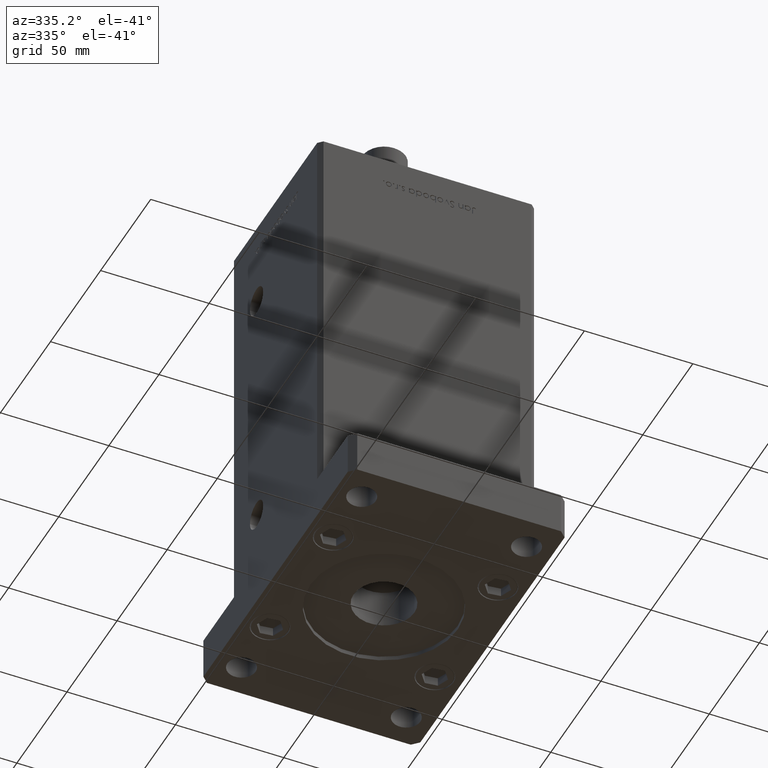
[diagram: clean part render]
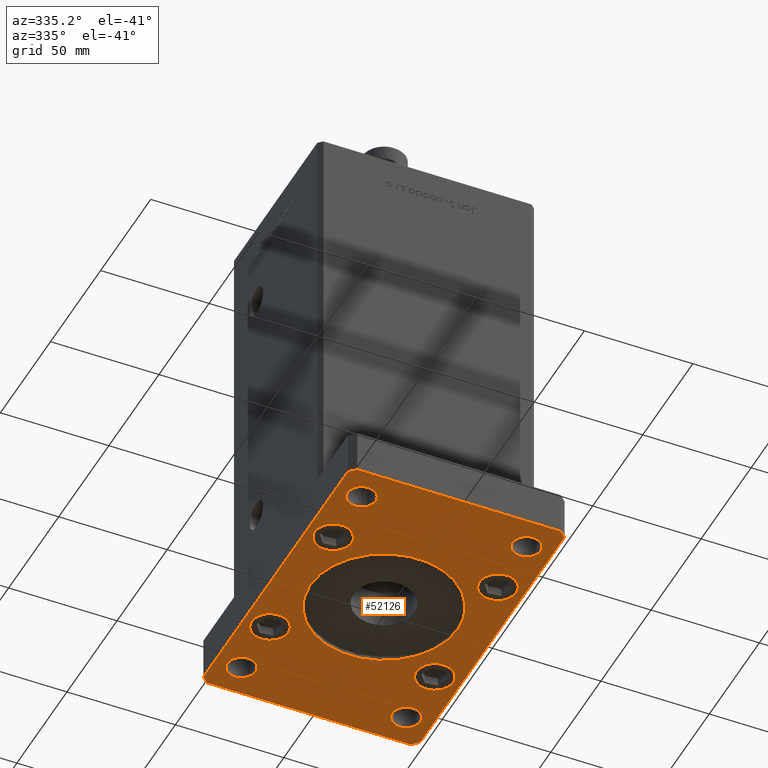
[diagram: same view with one face highlighted and labeled with its STEP entity id]
A machine part, auxiliary view. The second image highlights one B-rep face of the part: STEP entity #52126.
In plain terms, the highlighted planar face has unit normal (0, 0, 1).
Its self-contained STEP definition (entity closure, byte-faithful):
#197 = EDGE_LOOP ( 'NONE', ( #28468, #6349 ) ) ;
#212 = CARTESIAN_POINT ( 'NONE',  ( 50.00000000000000000, 72.00000000000001421, 0.000000000000000000 ) ) ;
#665 = VECTOR ( 'NONE', #53229, 1000.000000000000114 ) ;
#1785 = ORIENTED_EDGE ( 'NONE', *, *, #2836, .T. ) ;
#2441 = DIRECTION ( 'NONE',  ( 1.000000000000000000, 0.000000000000000000, 0.000000000000000000 ) ) ;
#2457 = CARTESIAN_POINT ( 'NONE',  ( 37.99999999999999289, 31.49999999999999289, 0.000000000000000000 ) ) ;
#2836 = EDGE_CURVE ( 'NONE', #18171, #7331, #42894, .T. ) ;
#2991 = EDGE_LOOP ( 'NONE', ( #16797, #13464 ) ) ;
#3123 = CARTESIAN_POINT ( 'NONE',  ( -37.99999999999997868, -60.00000000000000711, 0.000000000000000000 ) ) ;
#3392 = LINE ( 'NONE', #11594, #665 ) ;
#3873 = DIRECTION ( 'NONE',  ( 0.000000000000000000, 1.000000000000000000, 0.000000000000000000 ) ) ;
#4019 = VERTEX_POINT ( 'NONE', #23829 ) ;
#4035 = EDGE_CURVE ( 'NONE', #33178, #12800, #11246, .T. ) ;
#4108 = VERTEX_POINT ( 'NONE', #29292 ) ;
#4180 = ORIENTED_EDGE ( 'NONE', *, *, #4035, .F. ) ;
#4201 = DIRECTION ( 'NONE',  ( 1.000000000000000000, 0.000000000000000000, 0.000000000000000000 ) ) ;
#4315 = CARTESIAN_POINT ( 'NONE',  ( 50.00000000000000000, -71.99999999999988631, 0.000000000000000000 ) ) ;
#4889 = VECTOR ( 'NONE', #3873, 1000.000000000000000 ) ;
#5062 = DIRECTION ( 'NONE',  ( 0.000000000000000000, 0.000000000000000000, 1.000000000000000000 ) ) ;
#5187 = LINE ( 'NONE', #51744, #36402 ) ;
#5207 = ORIENTED_EDGE ( 'NONE', *, *, #12128, .T. ) ;
#5266 = DIRECTION ( 'NONE',  ( 0.000000000000000000, 0.000000000000000000, 1.000000000000000000 ) ) ;
#5337 = EDGE_CURVE ( 'NONE', #27609, #50921, #17599, .T. ) ;
#5537 = DIRECTION ( 'NONE',  ( 0.000000000000000000, 0.000000000000000000, 1.000000000000000000 ) ) ;
#5564 = EDGE_CURVE ( 'NONE', #32178, #21363, #53173, .T. ) ;
#5858 = AXIS2_PLACEMENT_3D ( 'NONE', #35581, #52556, #2441 ) ;
#6349 = ORIENTED_EDGE ( 'NONE', *, *, #47598, .F. ) ;
#6603 = CARTESIAN_POINT ( 'NONE',  ( 47.00000000000001421, -74.99999999999988631, 0.000000000000000000 ) ) ;
#7054 = AXIS2_PLACEMENT_3D ( 'NONE', #40006, #52882, #15077 ) ;
#7155 = ORIENTED_EDGE ( 'NONE', *, *, #23104, .F. ) ;
#7331 = VERTEX_POINT ( 'NONE', #38811 ) ;
#7526 = EDGE_CURVE ( 'NONE', #50304, #41120, #45672, .T. ) ;
#7620 = FACE_BOUND ( 'NONE', #197, .T. ) ;
#7838 = EDGE_CURVE ( 'NONE', #21363, #34116, #51510, .T. ) ;
#7860 = ORIENTED_EDGE ( 'NONE', *, *, #12104, .T. ) ;
#8419 = DIRECTION ( 'NONE',  ( 0.000000000000000000, 0.000000000000000000, 1.000000000000000000 ) ) ;
#9024 = VERTEX_POINT ( 'NONE', #42884 ) ;
#9240 = ORIENTED_EDGE ( 'NONE', *, *, #33992, .T. ) ;
#9595 = CARTESIAN_POINT ( 'NONE',  ( 44.50000000000000000, 59.99999999999998579, 0.000000000000000000 ) ) ;
#9722 = EDGE_LOOP ( 'NONE', ( #14594, #42485 ) ) ;
#10024 = DIRECTION ( 'NONE',  ( -1.000000000000000000, 0.000000000000000000, 0.000000000000000000 ) ) ;
#10362 = DIRECTION ( 'NONE',  ( -0.7071067811865425767, -0.7071067811865525687, 0.000000000000000000 ) ) ;
#11031 = EDGE_LOOP ( 'NONE', ( #5207, #28171 ) ) ;
#11246 = LINE ( 'NONE', #6603, #40302 ) ;
#11347 = VERTEX_POINT ( 'NONE', #22489 ) ;
#11537 = CARTESIAN_POINT ( 'NONE',  ( 50.00000000000000000, 72.00000000000001421, 0.000000000000000000 ) ) ;
#11594 = CARTESIAN_POINT ( 'NONE',  ( -49.99999999999998579, -72.00000000000001421, 0.000000000000000000 ) ) ;
#11996 = PLANE ( 'NONE',  #41144 ) ;
#12068 = CARTESIAN_POINT ( 'NONE',  ( 29.49999999999999645, -31.49999999999999289, 0.000000000000000000 ) ) ;
#12104 = EDGE_CURVE ( 'NONE', #46438, #34379, #36167, .T. ) ;
#12128 = EDGE_CURVE ( 'NONE', #9024, #27356, #43161, .T. ) ;
#12759 = DIRECTION ( 'NONE',  ( 0.000000000000000000, 0.000000000000000000, -1.000000000000000000 ) ) ;
#12800 = VERTEX_POINT ( 'NONE', #4315 ) ;
#12809 = DIRECTION ( 'NONE',  ( 1.000000000000000000, 0.000000000000000000, 0.000000000000000000 ) ) ;
#13053 = DIRECTION ( 'NONE',  ( 0.000000000000000000, 0.000000000000000000, 1.000000000000000000 ) ) ;
#13464 = ORIENTED_EDGE ( 'NONE', *, *, #27520, .T. ) ;
#13779 = CIRCLE ( 'NONE', #37397, 34.00000000000000000 ) ;
#13964 = DIRECTION ( 'NONE',  ( 0.000000000000000000, 0.000000000000000000, 1.000000000000000000 ) ) ;
#14188 = VECTOR ( 'NONE', #30670, 1000.000000000000000 ) ;
#14236 = DIRECTION ( 'NONE',  ( 1.000000000000000000, 0.000000000000000000, 0.000000000000000000 ) ) ;
#14594 = ORIENTED_EDGE ( 'NONE', *, *, #37574, .T. ) ;
#14742 = EDGE_CURVE ( 'NONE', #34379, #46438, #34488, .T. ) ;
#14844 = VERTEX_POINT ( 'NONE', #23112 ) ;
#15077 = DIRECTION ( 'NONE',  ( 1.000000000000000000, 0.000000000000000000, 0.000000000000000000 ) ) ;
#15486 = DIRECTION ( 'NONE',  ( 0.000000000000000000, 0.000000000000000000, 1.000000000000000000 ) ) ;
#15758 = CARTESIAN_POINT ( 'NONE',  ( -50.00000000000001421, 72.00000000000000000, 0.000000000000000000 ) ) ;
#15830 = FACE_BOUND ( 'NONE', #2991, .T. ) ;
#16357 = AXIS2_PLACEMENT_3D ( 'NONE', #42846, #41765, #38469 ) ;
#16631 = FACE_BOUND ( 'NONE', #21510, .T. ) ;
#16797 = ORIENTED_EDGE ( 'NONE', *, *, #5337, .T. ) ;
#17109 = ORIENTED_EDGE ( 'NONE', *, *, #21859, .T. ) ;
#17296 = AXIS2_PLACEMENT_3D ( 'NONE', #2457, #13964, #14236 ) ;
#17572 = CARTESIAN_POINT ( 'NONE',  ( -37.99999999999999289, 59.99999999999999289, 0.000000000000000000 ) ) ;
#17599 = CIRCLE ( 'NONE', #50856, 8.499999999999992895 ) ;
#18084 = CIRCLE ( 'NONE', #39086, 6.499999999999999112 ) ;
#18171 = VERTEX_POINT ( 'NONE', #41136 ) ;
#18331 = CARTESIAN_POINT ( 'NONE',  ( 47.00000000000002132, 75.00000000000002842, 0.000000000000000000 ) ) ;
#18448 = VECTOR ( 'NONE', #28236, 999.9999999999998863 ) ;
#18789 = CARTESIAN_POINT ( 'NONE',  ( 37.99999999999999289, 31.49999999999999289, 0.000000000000000000 ) ) ;
#18795 = CARTESIAN_POINT ( 'NONE',  ( -47.00000000000002842, 75.00000000000002842, 0.000000000000000000 ) ) ;
#18869 = CARTESIAN_POINT ( 'NONE',  ( 29.49999999999999645, 31.49999999999999289, 0.000000000000000000 ) ) ;
#19103 = EDGE_CURVE ( 'NONE', #27356, #9024, #44995, .T. ) ;
#19603 = DIRECTION ( 'NONE',  ( 0.000000000000000000, 0.000000000000000000, 1.000000000000000000 ) ) ;
#19721 = CIRCLE ( 'NONE', #39854, 8.499999999999992895 ) ;
#19844 = CIRCLE ( 'NONE', #16357, 6.499999999999999112 ) ;
#20120 = DIRECTION ( 'NONE',  ( 1.000000000000000000, 0.000000000000000000, 0.000000000000000000 ) ) ;
#21028 = DIRECTION ( 'NONE',  ( 0.000000000000000000, 0.000000000000000000, 1.000000000000000000 ) ) ;
#21363 = VERTEX_POINT ( 'NONE', #29752 ) ;
#21510 = EDGE_LOOP ( 'NONE', ( #31856, #30260 ) ) ;
#21535 = DIRECTION ( 'NONE',  ( 1.000000000000000000, 0.000000000000000000, 0.000000000000000000 ) ) ;
#21564 = CARTESIAN_POINT ( 'NONE',  ( -37.99999999999999289, 59.99999999999999289, 0.000000000000000000 ) ) ;
#21745 = DIRECTION ( 'NONE',  ( 1.000000000000000000, 0.000000000000000000, 0.000000000000000000 ) ) ;
#21859 = EDGE_CURVE ( 'NONE', #41120, #50304, #34600, .T. ) ;
#21954 = DIRECTION ( 'NONE',  ( 1.000000000000000000, 0.000000000000000000, 0.000000000000000000 ) ) ;
#22220 = DIRECTION ( 'NONE',  ( 1.000000000000000000, 0.000000000000000000, 0.000000000000000000 ) ) ;
#22489 = CARTESIAN_POINT ( 'NONE',  ( -31.49999999999997868, -60.00000000000000711, 0.000000000000000000 ) ) ;
#23010 = AXIS2_PLACEMENT_3D ( 'NONE', #34287, #5266, #21954 ) ;
#23104 = EDGE_CURVE ( 'NONE', #53372, #33178, #5187, .T. ) ;
#23112 = CARTESIAN_POINT ( 'NONE',  ( -49.99999999999998579, -72.00000000000001421, 0.000000000000000000 ) ) ;
#23273 = EDGE_CURVE ( 'NONE', #34116, #25913, #31713, .T. ) ;
#23829 = CARTESIAN_POINT ( 'NONE',  ( 34.00000000000000000, 4.163799117101000559E-15, 0.000000000000000000 ) ) ;
#24696 = ORIENTED_EDGE ( 'NONE', *, *, #14742, .T. ) ;
#24857 = FACE_BOUND ( 'NONE', #9722, .T. ) ;
#25093 = CARTESIAN_POINT ( 'NONE',  ( 0.000000000000000000, 0.000000000000000000, 0.000000000000000000 ) ) ;
#25126 = FACE_BOUND ( 'NONE', #39889, .T. ) ;
#25636 = EDGE_CURVE ( 'NONE', #11347, #30136, #18084, .T. ) ;
#25913 = VERTEX_POINT ( 'NONE', #15758 ) ;
#26099 = AXIS2_PLACEMENT_3D ( 'NONE', #53889, #13053, #21535 ) ;
#26149 = EDGE_CURVE ( 'NONE', #14844, #53372, #3392, .T. ) ;
#26183 = DIRECTION ( 'NONE',  ( 1.000000000000000000, 0.000000000000000000, 0.000000000000000000 ) ) ;
#27125 = CARTESIAN_POINT ( 'NONE',  ( -50.00000000000001421, 72.00000000000000000, 0.000000000000000000 ) ) ;
#27356 = VERTEX_POINT ( 'NONE', #44956 ) ;
#27520 = EDGE_CURVE ( 'NONE', #50921, #27609, #42685, .T. ) ;
#27609 = VERTEX_POINT ( 'NONE', #18869 ) ;
#27891 = AXIS2_PLACEMENT_3D ( 'NONE', #36322, #15486, #42583 ) ;
#28171 = ORIENTED_EDGE ( 'NONE', *, *, #19103, .T. ) ;
#28236 = DIRECTION ( 'NONE',  ( -0.7071067811865435759, 0.7071067811865515695, 0.000000000000000000 ) ) ;
#28424 = FACE_OUTER_BOUND ( 'NONE', #42066, .T. ) ;
#28468 = ORIENTED_EDGE ( 'NONE', *, *, #43608, .F. ) ;
#29292 = CARTESIAN_POINT ( 'NONE',  ( -29.50000000000000711, 31.50000000000000000, 0.000000000000000000 ) ) ;
#29451 = CIRCLE ( 'NONE', #5858, 8.499999999999992895 ) ;
#29525 = VECTOR ( 'NONE', #34821, 1000.000000000000000 ) ;
#29752 = CARTESIAN_POINT ( 'NONE',  ( 47.00000000000002132, 75.00000000000002842, 0.000000000000000000 ) ) ;
#30136 = VERTEX_POINT ( 'NONE', #41130 ) ;
#30260 = ORIENTED_EDGE ( 'NONE', *, *, #47135, .T. ) ;
#30670 = DIRECTION ( 'NONE',  ( -1.000000000000000000, 0.000000000000000000, 0.000000000000000000 ) ) ;
#30841 = DIRECTION ( 'NONE',  ( 0.000000000000000000, 0.000000000000000000, -1.000000000000000000 ) ) ;
#30870 = DIRECTION ( 'NONE',  ( 0.000000000000000000, 0.000000000000000000, 1.000000000000000000 ) ) ;
#30885 = ORIENTED_EDGE ( 'NONE', *, *, #44837, .F. ) ;
#30927 = AXIS2_PLACEMENT_3D ( 'NONE', #17572, #5537, #22220 ) ;
#30956 = CARTESIAN_POINT ( 'NONE',  ( -47.00000000000000000, -75.00000000000000000, 0.000000000000000000 ) ) ;
#31713 = LINE ( 'NONE', #35556, #41661 ) ;
#31856 = ORIENTED_EDGE ( 'NONE', *, *, #51669, .T. ) ;
#32178 = VERTEX_POINT ( 'NONE', #212 ) ;
#32183 = EDGE_LOOP ( 'NONE', ( #41955, #1785 ) ) ;
#32206 = ORIENTED_EDGE ( 'NONE', *, *, #7526, .T. ) ;
#32395 = CARTESIAN_POINT ( 'NONE',  ( 31.50000000000000000, 59.99999999999998579, 0.000000000000000000 ) ) ;
#32550 = DIRECTION ( 'NONE',  ( 1.000000000000000000, 0.000000000000000000, -0.000000000000000000 ) ) ;
#32845 = AXIS2_PLACEMENT_3D ( 'NONE', #42842, #5062, #21745 ) ;
#33039 = EDGE_LOOP ( 'NONE', ( #9240, #51300 ) ) ;
#33178 = VERTEX_POINT ( 'NONE', #48106 ) ;
#33782 = VERTEX_POINT ( 'NONE', #12068 ) ;
#33992 = EDGE_CURVE ( 'NONE', #33782, #41194, #19721, .T. ) ;
#34116 = VERTEX_POINT ( 'NONE', #18795 ) ;
#34122 = ORIENTED_EDGE ( 'NONE', *, *, #23273, .F. ) ;
#34134 = AXIS2_PLACEMENT_3D ( 'NONE', #51135, #47005, #26183 ) ;
#34287 = CARTESIAN_POINT ( 'NONE',  ( -38.00000000000000711, -31.50000000000000000, 0.000000000000000000 ) ) ;
#34379 = VERTEX_POINT ( 'NONE', #48530 ) ;
#34455 = EDGE_CURVE ( 'NONE', #12800, #32178, #49622, .T. ) ;
#34488 = CIRCLE ( 'NONE', #41478, 6.499999999999999112 ) ;
#34522 = AXIS2_PLACEMENT_3D ( 'NONE', #49173, #36030, #20120 ) ;
#34600 = CIRCLE ( 'NONE', #32845, 6.499999999999999112 ) ;
#34758 = DIRECTION ( 'NONE',  ( 1.000000000000000000, 1.181088324069315250E-15, 0.000000000000000000 ) ) ;
#34821 = DIRECTION ( 'NONE',  ( 1.927470528863118802E-16, -1.000000000000000000, 0.000000000000000000 ) ) ;
#35026 = CARTESIAN_POINT ( 'NONE',  ( 46.49999999999998579, 31.49999999999999289, 0.000000000000000000 ) ) ;
#35515 = DIRECTION ( 'NONE',  ( 1.000000000000000000, 0.000000000000000000, 0.000000000000000000 ) ) ;
#35556 = CARTESIAN_POINT ( 'NONE',  ( -47.00000000000002842, 75.00000000000002842, 0.000000000000000000 ) ) ;
#35581 = CARTESIAN_POINT ( 'NONE',  ( 37.99999999999999289, -31.49999999999999289, 0.000000000000000000 ) ) ;
#35901 = DIRECTION ( 'NONE',  ( 0.7071067811865459074, 0.7071067811865491270, 0.000000000000000000 ) ) ;
#36030 = DIRECTION ( 'NONE',  ( 0.000000000000000000, 0.000000000000000000, 1.000000000000000000 ) ) ;
#36167 = CIRCLE ( 'NONE', #30927, 6.499999999999999112 ) ;
#36322 = CARTESIAN_POINT ( 'NONE',  ( -38.00000000000000711, 31.50000000000000000, 0.000000000000000000 ) ) ;
#36402 = VECTOR ( 'NONE', #34758, 1000.000000000000000 ) ;
#36661 = CARTESIAN_POINT ( 'NONE',  ( 0.000000000000000000, 0.000000000000000000, 0.000000000000000000 ) ) ;
#36804 = DIRECTION ( 'NONE',  ( 0.000000000000000000, 0.000000000000000000, 1.000000000000000000 ) ) ;
#37397 = AXIS2_PLACEMENT_3D ( 'NONE', #25093, #12759, #41805 ) ;
#37456 = FACE_BOUND ( 'NONE', #33039, .T. ) ;
#37574 = EDGE_CURVE ( 'NONE', #30136, #11347, #19844, .T. ) ;
#37808 = CARTESIAN_POINT ( 'NONE',  ( 50.00000000000000000, -71.99999999999988631, 0.000000000000000000 ) ) ;
#38388 = EDGE_CURVE ( 'NONE', #41194, #33782, #29451, .T. ) ;
#38469 = DIRECTION ( 'NONE',  ( 1.000000000000000000, 0.000000000000000000, 0.000000000000000000 ) ) ;
#38530 = CIRCLE ( 'NONE', #7054, 8.500000000000000000 ) ;
#38811 = CARTESIAN_POINT ( 'NONE',  ( 31.49999999999997868, -60.00000000000000711, 0.000000000000000000 ) ) ;
#39086 = AXIS2_PLACEMENT_3D ( 'NONE', #3123, #36804, #4201 ) ;
#39470 = CARTESIAN_POINT ( 'NONE',  ( -34.00000000000000000, 0.000000000000000000, 0.000000000000000000 ) ) ;
#39854 = AXIS2_PLACEMENT_3D ( 'NONE', #40154, #30870, #51967 ) ;
#39889 = EDGE_LOOP ( 'NONE', ( #32206, #17109 ) ) ;
#40006 = CARTESIAN_POINT ( 'NONE',  ( -38.00000000000000711, 31.50000000000000000, 0.000000000000000000 ) ) ;
#40154 = CARTESIAN_POINT ( 'NONE',  ( 37.99999999999999289, -31.49999999999999289, 0.000000000000000000 ) ) ;
#40302 = VECTOR ( 'NONE', #35901, 1000.000000000000114 ) ;
#40708 = ORIENTED_EDGE ( 'NONE', *, *, #5564, .F. ) ;
#40993 = CIRCLE ( 'NONE', #45372, 34.00000000000000000 ) ;
#41120 = VERTEX_POINT ( 'NONE', #9595 ) ;
#41130 = CARTESIAN_POINT ( 'NONE',  ( -44.49999999999997868, -60.00000000000000711, 0.000000000000000000 ) ) ;
#41136 = CARTESIAN_POINT ( 'NONE',  ( 44.49999999999997868, -60.00000000000000711, 0.000000000000000000 ) ) ;
#41144 = AXIS2_PLACEMENT_3D ( 'NONE', #36661, #8419, #32550 ) ;
#41194 = VERTEX_POINT ( 'NONE', #53387 ) ;
#41478 = AXIS2_PLACEMENT_3D ( 'NONE', #21564, #21028, #12809 ) ;
#41563 = FACE_BOUND ( 'NONE', #43252, .T. ) ;
#41661 = VECTOR ( 'NONE', #10362, 999.9999999999998863 ) ;
#41765 = DIRECTION ( 'NONE',  ( 0.000000000000000000, 0.000000000000000000, 1.000000000000000000 ) ) ;
#41805 = DIRECTION ( 'NONE',  ( -1.000000000000000000, 0.000000000000000000, 0.000000000000000000 ) ) ;
#41955 = ORIENTED_EDGE ( 'NONE', *, *, #46045, .T. ) ;
#42066 = EDGE_LOOP ( 'NONE', ( #7155, #51652, #30885, #34122, #43630, #40708, #53487, #4180 ) ) ;
#42485 = ORIENTED_EDGE ( 'NONE', *, *, #25636, .T. ) ;
#42583 = DIRECTION ( 'NONE',  ( 1.000000000000000000, 0.000000000000000000, 0.000000000000000000 ) ) ;
#42685 = CIRCLE ( 'NONE', #17296, 8.499999999999992895 ) ;
#42842 = CARTESIAN_POINT ( 'NONE',  ( 38.00000000000000000, 59.99999999999998579, 0.000000000000000000 ) ) ;
#42846 = CARTESIAN_POINT ( 'NONE',  ( -37.99999999999997868, -60.00000000000000711, 0.000000000000000000 ) ) ;
#42884 = CARTESIAN_POINT ( 'NONE',  ( -46.50000000000000711, -31.50000000000000000, 0.000000000000000000 ) ) ;
#42894 = CIRCLE ( 'NONE', #34134, 6.499999999999999112 ) ;
#43161 = CIRCLE ( 'NONE', #23010, 8.500000000000000000 ) ;
#43252 = EDGE_LOOP ( 'NONE', ( #7860, #24696 ) ) ;
#43608 = EDGE_CURVE ( 'NONE', #48174, #4019, #13779, .T. ) ;
#43630 = ORIENTED_EDGE ( 'NONE', *, *, #7838, .F. ) ;
#43907 = AXIS2_PLACEMENT_3D ( 'NONE', #47575, #45620, #49746 ) ;
#44393 = CARTESIAN_POINT ( 'NONE',  ( -46.50000000000000711, 31.50000000000000000, 0.000000000000000000 ) ) ;
#44510 = CIRCLE ( 'NONE', #27891, 8.500000000000000000 ) ;
#44837 = EDGE_CURVE ( 'NONE', #25913, #14844, #51270, .T. ) ;
#44956 = CARTESIAN_POINT ( 'NONE',  ( -29.50000000000000711, -31.50000000000000000, 0.000000000000000000 ) ) ;
#44995 = CIRCLE ( 'NONE', #34522, 8.500000000000000000 ) ;
#45372 = AXIS2_PLACEMENT_3D ( 'NONE', #51680, #30841, #10024 ) ;
#45620 = DIRECTION ( 'NONE',  ( 0.000000000000000000, 0.000000000000000000, 1.000000000000000000 ) ) ;
#45672 = CIRCLE ( 'NONE', #43907, 6.499999999999999112 ) ;
#46045 = EDGE_CURVE ( 'NONE', #7331, #18171, #49732, .T. ) ;
#46438 = VERTEX_POINT ( 'NONE', #50271 ) ;
#46498 = VERTEX_POINT ( 'NONE', #44393 ) ;
#47005 = DIRECTION ( 'NONE',  ( 0.000000000000000000, 0.000000000000000000, 1.000000000000000000 ) ) ;
#47135 = EDGE_CURVE ( 'NONE', #4108, #46498, #44510, .T. ) ;
#47575 = CARTESIAN_POINT ( 'NONE',  ( 38.00000000000000000, 59.99999999999998579, 0.000000000000000000 ) ) ;
#47598 = EDGE_CURVE ( 'NONE', #4019, #48174, #40993, .T. ) ;
#48106 = CARTESIAN_POINT ( 'NONE',  ( 47.00000000000001421, -74.99999999999988631, 0.000000000000000000 ) ) ;
#48174 = VERTEX_POINT ( 'NONE', #39470 ) ;
#48530 = CARTESIAN_POINT ( 'NONE',  ( -31.49999999999999289, 59.99999999999999289, 0.000000000000000000 ) ) ;
#49173 = CARTESIAN_POINT ( 'NONE',  ( -38.00000000000000711, -31.50000000000000000, 0.000000000000000000 ) ) ;
#49532 = FACE_BOUND ( 'NONE', #32183, .T. ) ;
#49622 = LINE ( 'NONE', #37808, #4889 ) ;
#49732 = CIRCLE ( 'NONE', #26099, 6.499999999999999112 ) ;
#49746 = DIRECTION ( 'NONE',  ( 1.000000000000000000, 0.000000000000000000, 0.000000000000000000 ) ) ;
#50271 = CARTESIAN_POINT ( 'NONE',  ( -44.49999999999999289, 59.99999999999999289, 0.000000000000000000 ) ) ;
#50304 = VERTEX_POINT ( 'NONE', #32395 ) ;
#50856 = AXIS2_PLACEMENT_3D ( 'NONE', #18789, #19603, #35515 ) ;
#50921 = VERTEX_POINT ( 'NONE', #35026 ) ;
#51135 = CARTESIAN_POINT ( 'NONE',  ( 37.99999999999997868, -60.00000000000000711, 0.000000000000000000 ) ) ;
#51270 = LINE ( 'NONE', #27125, #29525 ) ;
#51300 = ORIENTED_EDGE ( 'NONE', *, *, #38388, .T. ) ;
#51510 = LINE ( 'NONE', #18331, #14188 ) ;
#51652 = ORIENTED_EDGE ( 'NONE', *, *, #26149, .F. ) ;
#51669 = EDGE_CURVE ( 'NONE', #46498, #4108, #38530, .T. ) ;
#51680 = CARTESIAN_POINT ( 'NONE',  ( 0.000000000000000000, 0.000000000000000000, 0.000000000000000000 ) ) ;
#51744 = CARTESIAN_POINT ( 'NONE',  ( -47.00000000000000000, -75.00000000000000000, 0.000000000000000000 ) ) ;
#51967 = DIRECTION ( 'NONE',  ( 1.000000000000000000, 0.000000000000000000, 0.000000000000000000 ) ) ;
#52126 = ADVANCED_FACE ( 'NONE', ( #7620, #28424, #24857, #25126, #41563, #53360, #37456, #15830, #16631, #49532 ), #11996, .F. ) ;
#52556 = DIRECTION ( 'NONE',  ( 0.000000000000000000, 0.000000000000000000, 1.000000000000000000 ) ) ;
#52882 = DIRECTION ( 'NONE',  ( 0.000000000000000000, 0.000000000000000000, 1.000000000000000000 ) ) ;
#53173 = LINE ( 'NONE', #11537, #18448 ) ;
#53229 = DIRECTION ( 'NONE',  ( 0.7071067811865474617, -0.7071067811865474617, 0.000000000000000000 ) ) ;
#53360 = FACE_BOUND ( 'NONE', #11031, .T. ) ;
#53372 = VERTEX_POINT ( 'NONE', #30956 ) ;
#53387 = CARTESIAN_POINT ( 'NONE',  ( 46.49999999999998579, -31.49999999999999289, 0.000000000000000000 ) ) ;
#53487 = ORIENTED_EDGE ( 'NONE', *, *, #34455, .F. ) ;
#53889 = CARTESIAN_POINT ( 'NONE',  ( 37.99999999999997868, -60.00000000000000711, 0.000000000000000000 ) ) ;